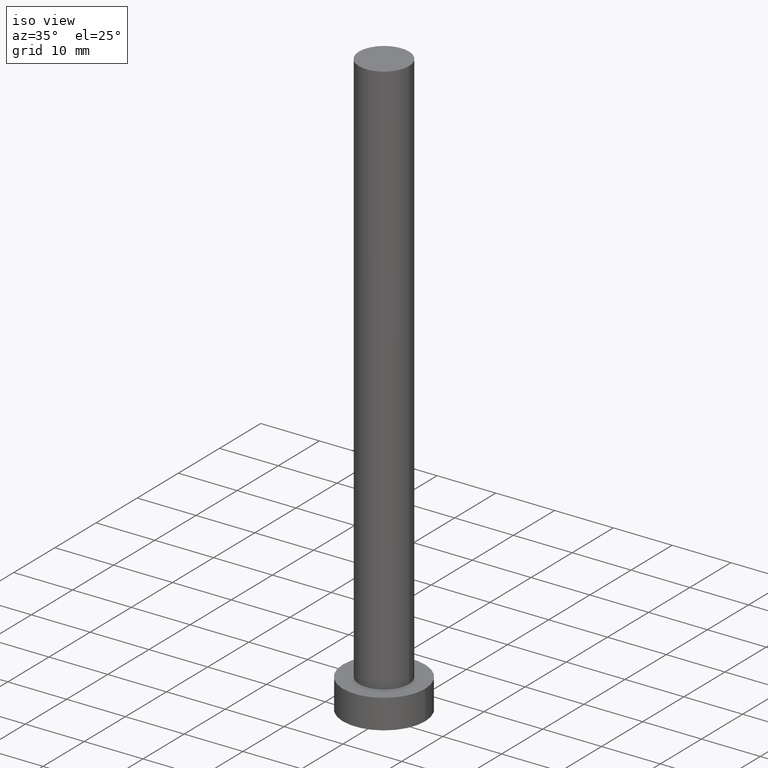
[diagram: clean part render]
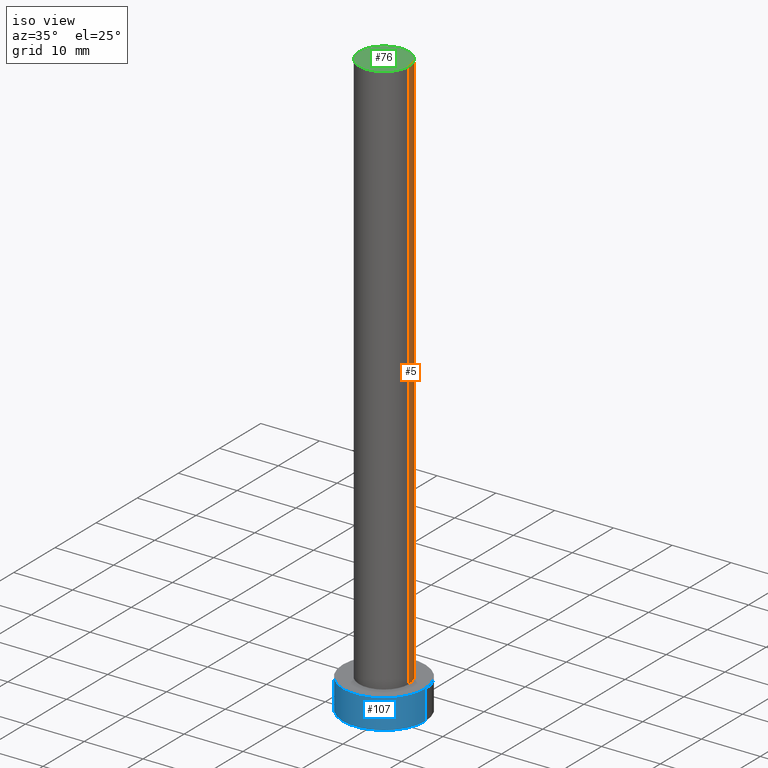
[diagram: same view with three faces highlighted in distinct colors, each labeled with its STEP entity id]
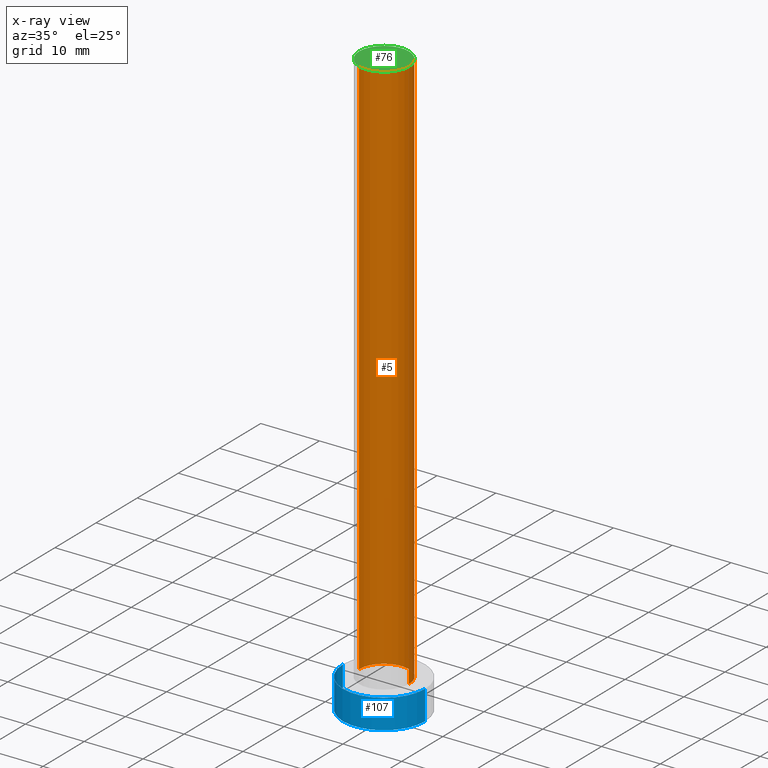
[diagram: x-ray of the same camera — body ghosted, the three highlighted faces saturated]
A machine part, iso view with three faces highlighted in distinct colors.
The next image is the same camera in x-ray (body ghosted, the three faces saturated) — at least one of them is partly hidden behind the body in this view.
Their STEP definitions:

[orange] entity #5 — the highlighted cylindrical surface (edge-blend (fillet) strip) has radius 4.25 mm, axis along (-0, -0, -1).
#2 = VECTOR ( 'NONE', #132, 1000.000000000000000 ) ;
#5 = ADVANCED_FACE ( 'NONE', ( #14 ), #94, .T. ) ;
#14 = FACE_OUTER_BOUND ( 'NONE', #165, .T. ) ;
#20 = EDGE_CURVE ( 'NONE', #110, #254, #250, .T. ) ;
#31 = EDGE_CURVE ( 'NONE', #254, #73, #96, .T. ) ;
#37 = ORIENTED_EDGE ( 'NONE', *, *, #31, .T. ) ;
#41 = DIRECTION ( 'NONE',  ( -0.000000000000000000, -0.000000000000000000, -1.000000000000000000 ) ) ;
#48 = CARTESIAN_POINT ( 'NONE',  ( 4.250000000000000000, 5.204748896376250699E-16, 5.000000000000000000 ) ) ;
#52 = CARTESIAN_POINT ( 'NONE',  ( -4.250000000000000000, 0.000000000000000000, 100.0000000000000000 ) ) ;
#59 = ORIENTED_EDGE ( 'NONE', *, *, #20, .T. ) ;
#60 = DIRECTION ( 'NONE',  ( -0.000000000000000000, -0.000000000000000000, -1.000000000000000000 ) ) ;
#70 = AXIS2_PLACEMENT_3D ( 'NONE', #232, #121, #188 ) ;
#73 = VERTEX_POINT ( 'NONE', #122 ) ;
#80 = DIRECTION ( 'NONE',  ( 0.000000000000000000, 0.000000000000000000, 1.000000000000000000 ) ) ;
#94 = CYLINDRICAL_SURFACE ( 'NONE', #182, 4.250000000000000000 ) ;
#96 = CIRCLE ( 'NONE', #70, 4.250000000000000000 ) ;
#110 = VERTEX_POINT ( 'NONE', #217 ) ;
#119 = CARTESIAN_POINT ( 'NONE',  ( -4.250000000000000000, 0.000000000000000000, 100.0000000000000000 ) ) ;
#121 = DIRECTION ( 'NONE',  ( 0.000000000000000000, 0.000000000000000000, 1.000000000000000000 ) ) ;
#122 = CARTESIAN_POINT ( 'NONE',  ( -4.250000000000000000, 0.000000000000000000, 5.000000000000000000 ) ) ;
#127 = EDGE_CURVE ( 'NONE', #227, #73, #222, .T. ) ;
#132 = DIRECTION ( 'NONE',  ( -0.000000000000000000, -0.000000000000000000, -1.000000000000000000 ) ) ;
#138 = DIRECTION ( 'NONE',  ( 1.000000000000000000, 0.000000000000000000, 0.000000000000000000 ) ) ;
#154 = ORIENTED_EDGE ( 'NONE', *, *, #226, .F. ) ;
#155 = CARTESIAN_POINT ( 'NONE',  ( 4.250000000000000000, 5.204748896376250699E-16, 100.0000000000000000 ) ) ;
#165 = EDGE_LOOP ( 'NONE', ( #154, #59, #37, #171 ) ) ;
#170 = AXIS2_PLACEMENT_3D ( 'NONE', #253, #80, #138 ) ;
#171 = ORIENTED_EDGE ( 'NONE', *, *, #127, .F. ) ;
#182 = AXIS2_PLACEMENT_3D ( 'NONE', #230, #60, #208 ) ;
#188 = DIRECTION ( 'NONE',  ( 1.000000000000000000, 0.000000000000000000, 0.000000000000000000 ) ) ;
#195 = CIRCLE ( 'NONE', #170, 4.250000000000000000 ) ;
#201 = VECTOR ( 'NONE', #41, 1000.000000000000000 ) ;
#208 = DIRECTION ( 'NONE',  ( -1.000000000000000000, 0.000000000000000000, 0.000000000000000000 ) ) ;
#217 = CARTESIAN_POINT ( 'NONE',  ( 4.250000000000000000, 5.204748896376250699E-16, 100.0000000000000000 ) ) ;
#222 = LINE ( 'NONE', #52, #2 ) ;
#226 = EDGE_CURVE ( 'NONE', #110, #227, #195, .T. ) ;
#227 = VERTEX_POINT ( 'NONE', #119 ) ;
#230 = CARTESIAN_POINT ( 'NONE',  ( 0.000000000000000000, 0.000000000000000000, 100.0000000000000000 ) ) ;
#232 = CARTESIAN_POINT ( 'NONE',  ( 0.000000000000000000, 0.000000000000000000, 5.000000000000000000 ) ) ;
#250 = LINE ( 'NONE', #155, #201 ) ;
#253 = CARTESIAN_POINT ( 'NONE',  ( 0.000000000000000000, 0.000000000000000000, 100.0000000000000000 ) ) ;
#254 = VERTEX_POINT ( 'NONE', #48 ) ;

[blue] entity #107 — the highlighted cylindrical surface (partial cylindrical patch) has radius 7 mm, axis along (-0, -0, -1).
#1 = VECTOR ( 'NONE', #246, 1000.000000000000000 ) ;
#6 = CARTESIAN_POINT ( 'NONE',  ( 0.000000000000000000, 0.000000000000000000, 0.000000000000000000 ) ) ;
#11 = LINE ( 'NONE', #92, #1 ) ;
#13 = CARTESIAN_POINT ( 'NONE',  ( 0.000000000000000000, 0.000000000000000000, 5.000000000000000000 ) ) ;
#19 = CARTESIAN_POINT ( 'NONE',  ( -7.000000000000000000, 0.000000000000000000, 0.000000000000000000 ) ) ;
#35 = CARTESIAN_POINT ( 'NONE',  ( 0.000000000000000000, 0.000000000000000000, 5.000000000000000000 ) ) ;
#39 = DIRECTION ( 'NONE',  ( 1.000000000000000000, 0.000000000000000000, 0.000000000000000000 ) ) ;
#47 = FACE_OUTER_BOUND ( 'NONE', #248, .T. ) ;
#62 = DIRECTION ( 'NONE',  ( 0.000000000000000000, 0.000000000000000000, 1.000000000000000000 ) ) ;
#64 = EDGE_CURVE ( 'NONE', #131, #117, #98, .T. ) ;
#71 = LINE ( 'NONE', #145, #133 ) ;
#92 = CARTESIAN_POINT ( 'NONE',  ( -7.000000000000000000, 0.000000000000000000, 5.000000000000000000 ) ) ;
#98 = CIRCLE ( 'NONE', #109, 7.000000000000000000 ) ;
#101 = DIRECTION ( 'NONE',  ( -0.000000000000000000, -0.000000000000000000, -1.000000000000000000 ) ) ;
#107 = ADVANCED_FACE ( 'NONE', ( #47 ), #108, .T. ) ;
#108 = CYLINDRICAL_SURFACE ( 'NONE', #162, 7.000000000000000000 ) ;
#109 = AXIS2_PLACEMENT_3D ( 'NONE', #35, #137, #39 ) ;
#114 = EDGE_CURVE ( 'NONE', #131, #220, #11, .T. ) ;
#117 = VERTEX_POINT ( 'NONE', #152 ) ;
#126 = CIRCLE ( 'NONE', #192, 7.000000000000000000 ) ;
#128 = DIRECTION ( 'NONE',  ( -0.000000000000000000, -0.000000000000000000, -1.000000000000000000 ) ) ;
#131 = VERTEX_POINT ( 'NONE', #240 ) ;
#133 = VECTOR ( 'NONE', #101, 1000.000000000000000 ) ;
#137 = DIRECTION ( 'NONE',  ( 0.000000000000000000, 0.000000000000000000, 1.000000000000000000 ) ) ;
#145 = CARTESIAN_POINT ( 'NONE',  ( 7.000000000000000000, 8.572527594031473190E-16, 5.000000000000000000 ) ) ;
#148 = DIRECTION ( 'NONE',  ( -1.000000000000000000, 0.000000000000000000, 0.000000000000000000 ) ) ;
#152 = CARTESIAN_POINT ( 'NONE',  ( 7.000000000000000000, 8.572527594031473190E-16, 5.000000000000000000 ) ) ;
#162 = AXIS2_PLACEMENT_3D ( 'NONE', #13, #128, #148 ) ;
#166 = ORIENTED_EDGE ( 'NONE', *, *, #215, .T. ) ;
#177 = EDGE_CURVE ( 'NONE', #117, #249, #71, .T. ) ;
#184 = ORIENTED_EDGE ( 'NONE', *, *, #177, .F. ) ;
#192 = AXIS2_PLACEMENT_3D ( 'NONE', #6, #62, #194 ) ;
#194 = DIRECTION ( 'NONE',  ( 1.000000000000000000, 0.000000000000000000, 0.000000000000000000 ) ) ;
#203 = ORIENTED_EDGE ( 'NONE', *, *, #64, .F. ) ;
#204 = ORIENTED_EDGE ( 'NONE', *, *, #114, .T. ) ;
#215 = EDGE_CURVE ( 'NONE', #220, #249, #126, .T. ) ;
#216 = CARTESIAN_POINT ( 'NONE',  ( 7.000000000000000000, 8.572527594031473190E-16, 0.000000000000000000 ) ) ;
#220 = VERTEX_POINT ( 'NONE', #19 ) ;
#240 = CARTESIAN_POINT ( 'NONE',  ( -7.000000000000000000, 0.000000000000000000, 5.000000000000000000 ) ) ;
#246 = DIRECTION ( 'NONE',  ( -0.000000000000000000, -0.000000000000000000, -1.000000000000000000 ) ) ;
#248 = EDGE_LOOP ( 'NONE', ( #184, #203, #204, #166 ) ) ;
#249 = VERTEX_POINT ( 'NONE', #216 ) ;

[green] entity #76 — the highlighted planar face has unit normal (0, 0, 1).
#21 = CARTESIAN_POINT ( 'NONE',  ( 0.000000000000000000, 0.000000000000000000, 100.0000000000000000 ) ) ;
#23 = DIRECTION ( 'NONE',  ( 0.000000000000000000, 0.000000000000000000, 1.000000000000000000 ) ) ;
#24 = AXIS2_PLACEMENT_3D ( 'NONE', #211, #23, #235 ) ;
#43 = AXIS2_PLACEMENT_3D ( 'NONE', #21, #143, #44 ) ;
#44 = DIRECTION ( 'NONE',  ( 1.000000000000000000, 0.000000000000000000, 0.000000000000000000 ) ) ;
#76 = ADVANCED_FACE ( 'NONE', ( #176 ), #209, .T. ) ;
#80 = DIRECTION ( 'NONE',  ( 0.000000000000000000, 0.000000000000000000, 1.000000000000000000 ) ) ;
#110 = VERTEX_POINT ( 'NONE', #217 ) ;
#119 = CARTESIAN_POINT ( 'NONE',  ( -4.250000000000000000, 0.000000000000000000, 100.0000000000000000 ) ) ;
#136 = ORIENTED_EDGE ( 'NONE', *, *, #226, .T. ) ;
#138 = DIRECTION ( 'NONE',  ( 1.000000000000000000, 0.000000000000000000, 0.000000000000000000 ) ) ;
#143 = DIRECTION ( 'NONE',  ( 0.000000000000000000, 0.000000000000000000, 1.000000000000000000 ) ) ;
#167 = ORIENTED_EDGE ( 'NONE', *, *, #241, .T. ) ;
#170 = AXIS2_PLACEMENT_3D ( 'NONE', #253, #80, #138 ) ;
#176 = FACE_OUTER_BOUND ( 'NONE', #229, .T. ) ;
#195 = CIRCLE ( 'NONE', #170, 4.250000000000000000 ) ;
#209 = PLANE ( 'NONE',  #24 ) ;
#211 = CARTESIAN_POINT ( 'NONE',  ( 0.000000000000000000, 0.000000000000000000, 100.0000000000000000 ) ) ;
#217 = CARTESIAN_POINT ( 'NONE',  ( 4.250000000000000000, 5.204748896376250699E-16, 100.0000000000000000 ) ) ;
#226 = EDGE_CURVE ( 'NONE', #110, #227, #195, .T. ) ;
#227 = VERTEX_POINT ( 'NONE', #119 ) ;
#229 = EDGE_LOOP ( 'NONE', ( #167, #136 ) ) ;
#235 = DIRECTION ( 'NONE',  ( 1.000000000000000000, 0.000000000000000000, -0.000000000000000000 ) ) ;
#241 = EDGE_CURVE ( 'NONE', #227, #110, #252, .T. ) ;
#252 = CIRCLE ( 'NONE', #43, 4.250000000000000000 ) ;
#253 = CARTESIAN_POINT ( 'NONE',  ( 0.000000000000000000, 0.000000000000000000, 100.0000000000000000 ) ) ;